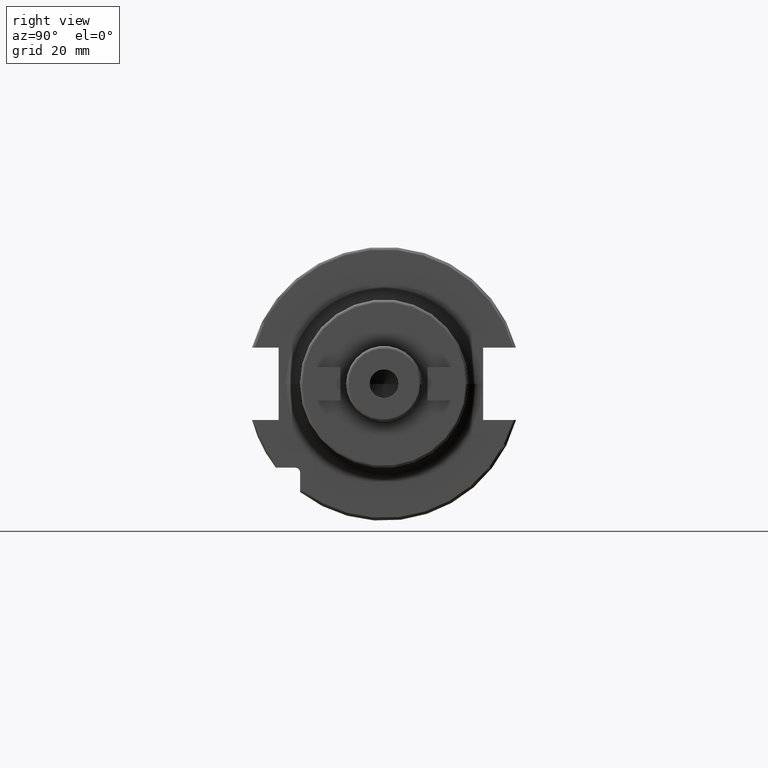
[diagram: clean part render]
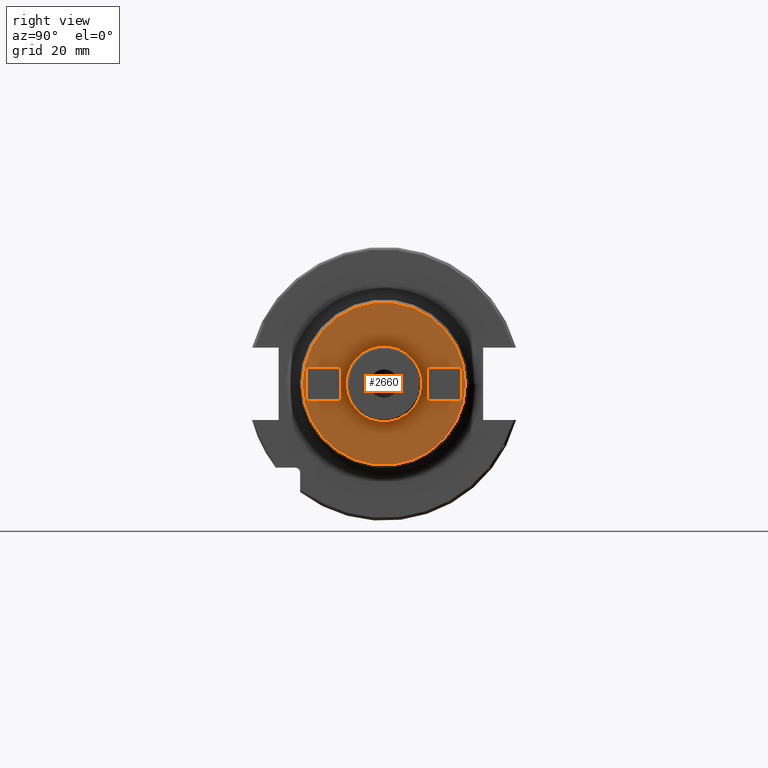
[diagram: same view with one face highlighted and labeled with its STEP entity id]
A machine part, right view. The second image highlights one B-rep face of the part: STEP entity #2660.
In plain terms, the highlighted planar face has unit normal (1, 0, 0).
Its self-contained STEP definition (entity closure, byte-faithful):
#944=CARTESIAN_POINT('',(1.E2,0.E0,0.E0));
#945=DIRECTION('',(1.E0,0.E0,0.E0));
#946=DIRECTION('',(0.E0,1.E0,0.E0));
#947=AXIS2_PLACEMENT_3D('',#944,#945,#946);
#949=CARTESIAN_POINT('',(1.E2,0.E0,0.E0));
#950=DIRECTION('',(-1.E0,0.E0,0.E0));
#951=DIRECTION('',(0.E0,1.E0,0.E0));
#952=AXIS2_PLACEMENT_3D('',#949,#950,#951);
#954=CARTESIAN_POINT('',(1.E2,0.E0,0.E0));
#955=DIRECTION('',(-1.E0,0.E0,0.E0));
#956=DIRECTION('',(0.E0,1.E0,0.E0));
#957=AXIS2_PLACEMENT_3D('',#954,#955,#956);
#959=CARTESIAN_POINT('',(1.E2,0.E0,0.E0));
#960=DIRECTION('',(-1.E0,0.E0,0.E0));
#961=DIRECTION('',(0.E0,-1.E0,0.E0));
#962=AXIS2_PLACEMENT_3D('',#959,#960,#961);
#964=DIRECTION('',(0.E0,-1.E0,0.E0));
#965=VECTOR('',#964,1.2E1);
#966=CARTESIAN_POINT('',(1.E2,2.75E1,6.E0));
#967=LINE('',#966,#965);
#968=DIRECTION('',(0.E0,0.E0,-1.E0));
#969=VECTOR('',#968,1.2E1);
#970=CARTESIAN_POINT('',(1.E2,1.55E1,6.E0));
#971=LINE('',#970,#969);
#972=DIRECTION('',(0.E0,1.E0,0.E0));
#973=VECTOR('',#972,1.2E1);
#974=CARTESIAN_POINT('',(1.E2,1.55E1,-6.E0));
#975=LINE('',#974,#973);
#976=DIRECTION('',(0.E0,0.E0,1.E0));
#977=VECTOR('',#976,1.2E1);
#978=CARTESIAN_POINT('',(1.E2,2.75E1,-6.E0));
#979=LINE('',#978,#977);
#980=DIRECTION('',(0.E0,-1.E0,0.E0));
#981=VECTOR('',#980,1.2E1);
#982=CARTESIAN_POINT('',(1.E2,-1.55E1,6.E0));
#983=LINE('',#982,#981);
#984=DIRECTION('',(0.E0,0.E0,-1.E0));
#985=VECTOR('',#984,1.2E1);
#986=CARTESIAN_POINT('',(1.E2,-2.75E1,6.E0));
#987=LINE('',#986,#985);
#988=DIRECTION('',(0.E0,1.E0,0.E0));
#989=VECTOR('',#988,1.2E1);
#990=CARTESIAN_POINT('',(1.E2,-2.75E1,-6.E0));
#991=LINE('',#990,#989);
#992=DIRECTION('',(0.E0,0.E0,1.E0));
#993=VECTOR('',#992,1.2E1);
#994=CARTESIAN_POINT('',(1.E2,-1.55E1,-6.E0));
#995=LINE('',#994,#993);
#1566=CARTESIAN_POINT('',(1.E2,1.35E1,0.E0));
#1567=CARTESIAN_POINT('',(1.E2,-1.35E1,0.E0));
#1568=VERTEX_POINT('',#1566);
#1569=VERTEX_POINT('',#1567);
#1582=CARTESIAN_POINT('',(1.E2,2.9E1,0.E0));
#1583=CARTESIAN_POINT('',(1.E2,-2.9E1,0.E0));
#1584=VERTEX_POINT('',#1582);
#1585=VERTEX_POINT('',#1583);
#1620=CARTESIAN_POINT('',(1.E2,2.75E1,6.E0));
#1621=CARTESIAN_POINT('',(1.E2,1.55E1,6.E0));
#1622=VERTEX_POINT('',#1620);
#1623=VERTEX_POINT('',#1621);
#1624=CARTESIAN_POINT('',(1.E2,1.55E1,-6.E0));
#1625=VERTEX_POINT('',#1624);
#1626=CARTESIAN_POINT('',(1.E2,2.75E1,-6.E0));
#1627=VERTEX_POINT('',#1626);
#1628=CARTESIAN_POINT('',(1.E2,-1.55E1,6.E0));
#1629=CARTESIAN_POINT('',(1.E2,-2.75E1,6.E0));
#1630=VERTEX_POINT('',#1628);
#1631=VERTEX_POINT('',#1629);
#1632=CARTESIAN_POINT('',(1.E2,-2.75E1,-6.E0));
#1633=VERTEX_POINT('',#1632);
#1634=CARTESIAN_POINT('',(1.E2,-1.55E1,-6.E0));
#1635=VERTEX_POINT('',#1634);
#2625=CARTESIAN_POINT('',(1.E2,0.E0,0.E0));
#2626=DIRECTION('',(1.E0,0.E0,0.E0));
#2627=DIRECTION('',(0.E0,-1.E0,0.E0));
#2628=AXIS2_PLACEMENT_3D('',#2625,#2626,#2627);
#2629=PLANE('',#2628);
#2630=ORIENTED_EDGE('',*,*,#2607,.T.);
#2631=ORIENTED_EDGE('',*,*,#2592,.T.);
#2632=EDGE_LOOP('',(#2630,#2631));
#2633=FACE_OUTER_BOUND('',#2632,.F.);
#2635=ORIENTED_EDGE('',*,*,#2634,.T.);
#2637=ORIENTED_EDGE('',*,*,#2636,.F.);
#2638=EDGE_LOOP('',(#2635,#2637));
#2639=FACE_BOUND('',#2638,.F.);
#2641=ORIENTED_EDGE('',*,*,#2640,.T.);
#2643=ORIENTED_EDGE('',*,*,#2642,.T.);
#2645=ORIENTED_EDGE('',*,*,#2644,.T.);
#2647=ORIENTED_EDGE('',*,*,#2646,.T.);
#2648=EDGE_LOOP('',(#2641,#2643,#2645,#2647));
#2649=FACE_BOUND('',#2648,.F.);
#2651=ORIENTED_EDGE('',*,*,#2650,.T.);
#2653=ORIENTED_EDGE('',*,*,#2652,.T.);
#2655=ORIENTED_EDGE('',*,*,#2654,.T.);
#2657=ORIENTED_EDGE('',*,*,#2656,.T.);
#2658=EDGE_LOOP('',(#2651,#2653,#2655,#2657));
#2659=FACE_BOUND('',#2658,.F.);
#2660=ADVANCED_FACE('',(#2633,#2639,#2649,#2659),#2629,.T.);
#948=CIRCLE('',#947,1.35E1);
#953=CIRCLE('',#952,1.35E1);
#958=CIRCLE('',#957,2.9E1);
#963=CIRCLE('',#962,2.9E1);
#2592=EDGE_CURVE('',#1585,#1584,#963,.T.);
#2607=EDGE_CURVE('',#1584,#1585,#958,.T.);
#2634=EDGE_CURVE('',#1568,#1569,#948,.T.);
#2636=EDGE_CURVE('',#1568,#1569,#953,.T.);
#2640=EDGE_CURVE('',#1622,#1623,#967,.T.);
#2642=EDGE_CURVE('',#1623,#1625,#971,.T.);
#2644=EDGE_CURVE('',#1625,#1627,#975,.T.);
#2646=EDGE_CURVE('',#1627,#1622,#979,.T.);
#2650=EDGE_CURVE('',#1630,#1631,#983,.T.);
#2652=EDGE_CURVE('',#1631,#1633,#987,.T.);
#2654=EDGE_CURVE('',#1633,#1635,#991,.T.);
#2656=EDGE_CURVE('',#1635,#1630,#995,.T.);